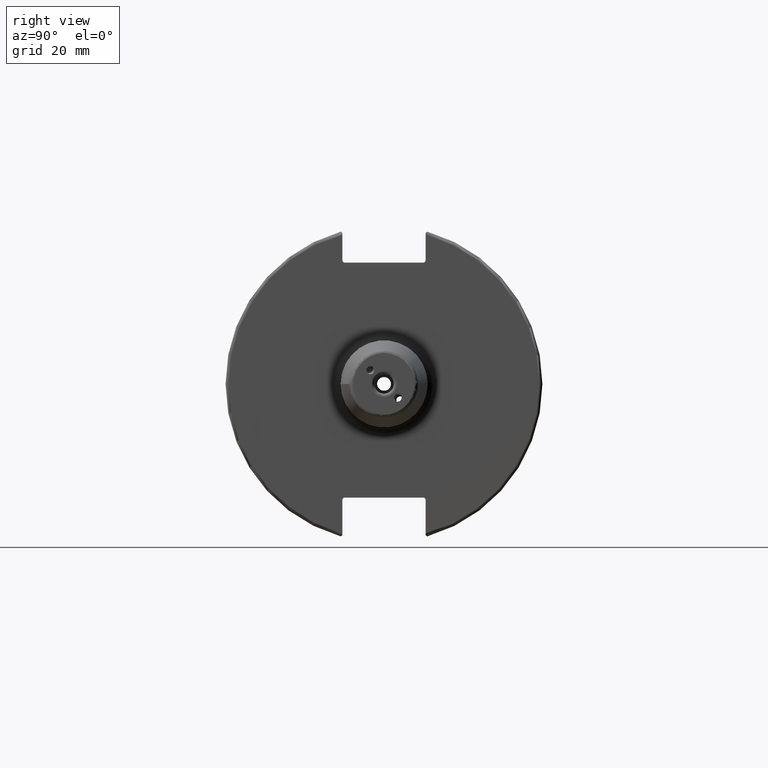
[diagram: clean part render]
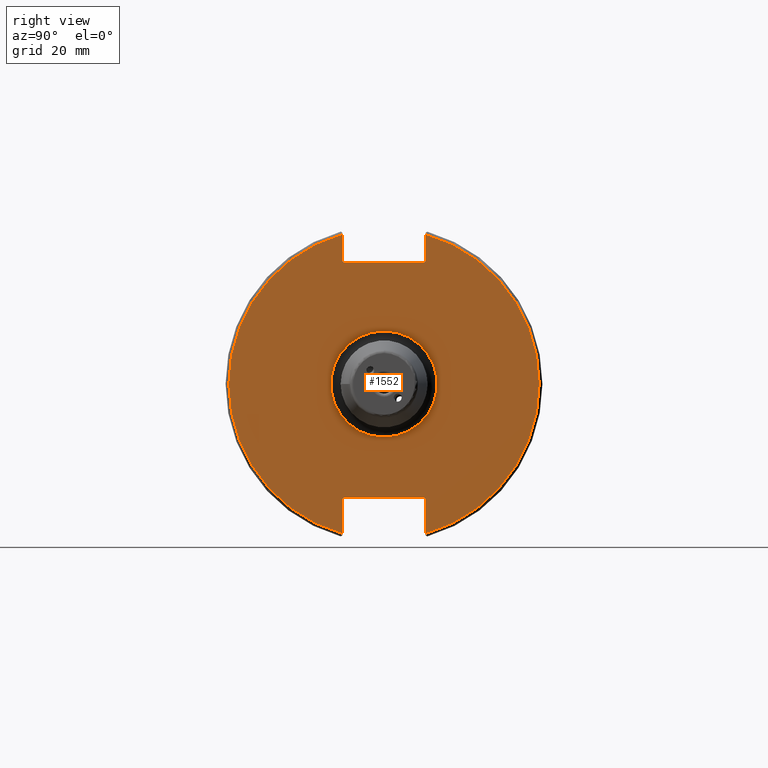
[diagram: same view with one face highlighted and labeled with its STEP entity id]
A machine part, right view. The second image highlights one B-rep face of the part: STEP entity #1552.
In plain terms, the highlighted planar face has unit normal (1, 0, 0).
Its self-contained STEP definition (entity closure, byte-faithful):
#34=PLANE('',#1692);
#84=FACE_BOUND('',#288,.T.);
#188=FACE_OUTER_BOUND('',#287,.T.);
#287=EDGE_LOOP('',(#1121,#1122,#1123,#1124,#1125,#1126,#1127,#1128,#1129,
#1130,#1131,#1132));
#288=EDGE_LOOP('',(#1133));
#388=LINE('',#2437,#486);
#389=LINE('',#2439,#487);
#390=LINE('',#2441,#488);
#391=LINE('',#2443,#489);
#392=LINE('',#2445,#490);
#393=LINE('',#2449,#491);
#394=LINE('',#2451,#492);
#395=LINE('',#2453,#493);
#396=LINE('',#2455,#494);
#397=LINE('',#2456,#495);
#486=VECTOR('',#1927,10.);
#487=VECTOR('',#1928,10.);
#488=VECTOR('',#1929,10.);
#489=VECTOR('',#1930,10.);
#490=VECTOR('',#1931,10.);
#491=VECTOR('',#1934,10.);
#492=VECTOR('',#1935,10.);
#493=VECTOR('',#1936,10.);
#494=VECTOR('',#1937,10.);
#495=VECTOR('',#1938,10.);
#594=CIRCLE('',#1689,16.5);
#596=CIRCLE('',#1693,48.2125);
#597=CIRCLE('',#1694,48.2125);
#680=VERTEX_POINT('',#2426);
#681=VERTEX_POINT('',#2433);
#682=VERTEX_POINT('',#2434);
#683=VERTEX_POINT('',#2436);
#684=VERTEX_POINT('',#2438);
#685=VERTEX_POINT('',#2440);
#686=VERTEX_POINT('',#2442);
#687=VERTEX_POINT('',#2444);
#688=VERTEX_POINT('',#2446);
#689=VERTEX_POINT('',#2448);
#690=VERTEX_POINT('',#2450);
#691=VERTEX_POINT('',#2452);
#692=VERTEX_POINT('',#2454);
#848=EDGE_CURVE('',#680,#680,#594,.T.);
#851=EDGE_CURVE('',#681,#682,#596,.T.);
#852=EDGE_CURVE('',#681,#683,#388,.T.);
#853=EDGE_CURVE('',#684,#683,#389,.T.);
#854=EDGE_CURVE('',#684,#685,#390,.T.);
#855=EDGE_CURVE('',#686,#685,#391,.T.);
#856=EDGE_CURVE('',#686,#687,#392,.T.);
#857=EDGE_CURVE('',#688,#687,#597,.T.);
#858=EDGE_CURVE('',#688,#689,#393,.T.);
#859=EDGE_CURVE('',#690,#689,#394,.T.);
#860=EDGE_CURVE('',#690,#691,#395,.T.);
#861=EDGE_CURVE('',#692,#691,#396,.T.);
#862=EDGE_CURVE('',#692,#682,#397,.T.);
#1121=ORIENTED_EDGE('',*,*,#851,.F.);
#1122=ORIENTED_EDGE('',*,*,#852,.T.);
#1123=ORIENTED_EDGE('',*,*,#853,.F.);
#1124=ORIENTED_EDGE('',*,*,#854,.T.);
#1125=ORIENTED_EDGE('',*,*,#855,.F.);
#1126=ORIENTED_EDGE('',*,*,#856,.T.);
#1127=ORIENTED_EDGE('',*,*,#857,.F.);
#1128=ORIENTED_EDGE('',*,*,#858,.T.);
#1129=ORIENTED_EDGE('',*,*,#859,.F.);
#1130=ORIENTED_EDGE('',*,*,#860,.T.);
#1131=ORIENTED_EDGE('',*,*,#861,.F.);
#1132=ORIENTED_EDGE('',*,*,#862,.T.);
#1133=ORIENTED_EDGE('',*,*,#848,.F.);
#1552=ADVANCED_FACE('',(#188,#84),#34,.T.);
#1689=AXIS2_PLACEMENT_3D('',#2428,#1916,#1917);
#1692=AXIS2_PLACEMENT_3D('',#2432,#1923,#1924);
#1693=AXIS2_PLACEMENT_3D('',#2435,#1925,#1926);
#1694=AXIS2_PLACEMENT_3D('',#2447,#1932,#1933);
#1916=DIRECTION('center_axis',(1.,0.,0.));
#1917=DIRECTION('ref_axis',(0.,-1.,-1.22464679914735E-16));
#1923=DIRECTION('center_axis',(1.,0.,0.));
#1924=DIRECTION('ref_axis',(0.,0.,-1.));
#1925=DIRECTION('center_axis',(-1.,0.,0.));
#1926=DIRECTION('ref_axis',(0.,1.,-6.12323399573677E-17));
#1927=DIRECTION('',(0.,0.,-1.));
#1928=DIRECTION('',(0.,0.707106781186549,0.707106781186546));
#1929=DIRECTION('',(0.,-1.,0.));
#1930=DIRECTION('',(0.,0.707106781186549,-0.707106781186546));
#1931=DIRECTION('',(0.,0.,1.));
#1932=DIRECTION('center_axis',(-1.,0.,0.));
#1933=DIRECTION('ref_axis',(0.,-1.,1.60812264967664E-16));
#1934=DIRECTION('',(0.,0.,1.));
#1935=DIRECTION('',(0.,-0.707106781186549,-0.707106781186546));
#1936=DIRECTION('',(0.,1.,0.));
#1937=DIRECTION('',(0.,-0.707106781186549,0.707106781186546));
#1938=DIRECTION('',(0.,0.,-1.));
#2426=CARTESIAN_POINT('',(19.05,-2.02066721859313E-15,-16.5));
#2428=CARTESIAN_POINT('Origin',(19.05,0.,0.));
#2432=CARTESIAN_POINT('Origin',(19.05,0.,0.));
#2433=CARTESIAN_POINT('',(19.05,12.95,46.4407434937254));
#2434=CARTESIAN_POINT('',(19.05,12.95,-46.4407434937254));
#2435=CARTESIAN_POINT('Origin',(19.05,0.,0.));
#2436=CARTESIAN_POINT('',(19.05,12.95,38.219));
#2437=CARTESIAN_POINT('',(19.05,12.95,18.8595));
#2438=CARTESIAN_POINT('',(19.05,12.45,37.719));
#2439=CARTESIAN_POINT('',(19.05,0.0327499999999836,25.30175));
#2440=CARTESIAN_POINT('',(19.05,-12.45,37.719));
#2441=CARTESIAN_POINT('',(19.05,0.,37.719));
#2442=CARTESIAN_POINT('',(19.05,-12.95,38.219));
#2443=CARTESIAN_POINT('',(19.05,-0.0327499999999817,25.30175));
#2444=CARTESIAN_POINT('',(19.05,-12.95,46.4407434937254));
#2445=CARTESIAN_POINT('',(19.05,-12.95,18.8595));
#2446=CARTESIAN_POINT('',(19.05,-12.95,-46.4407434937254));
#2447=CARTESIAN_POINT('Origin',(19.05,0.,0.));
#2448=CARTESIAN_POINT('',(19.05,-12.95,-35.806));
#2449=CARTESIAN_POINT('',(19.05,-12.95,-17.653));
#2450=CARTESIAN_POINT('',(19.05,-12.45,-35.306));
#2451=CARTESIAN_POINT('',(19.05,-0.635999999999989,-23.492));
#2452=CARTESIAN_POINT('',(19.05,12.45,-35.306));
#2453=CARTESIAN_POINT('',(19.05,-3.33066907387547E-15,-35.306));
#2454=CARTESIAN_POINT('',(19.05,12.95,-35.806));
#2455=CARTESIAN_POINT('',(19.05,0.635999999999982,-23.492));
#2456=CARTESIAN_POINT('',(19.05,12.95,-17.653));